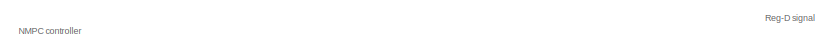
[diagram: root canvas - part 1/2, top center region]
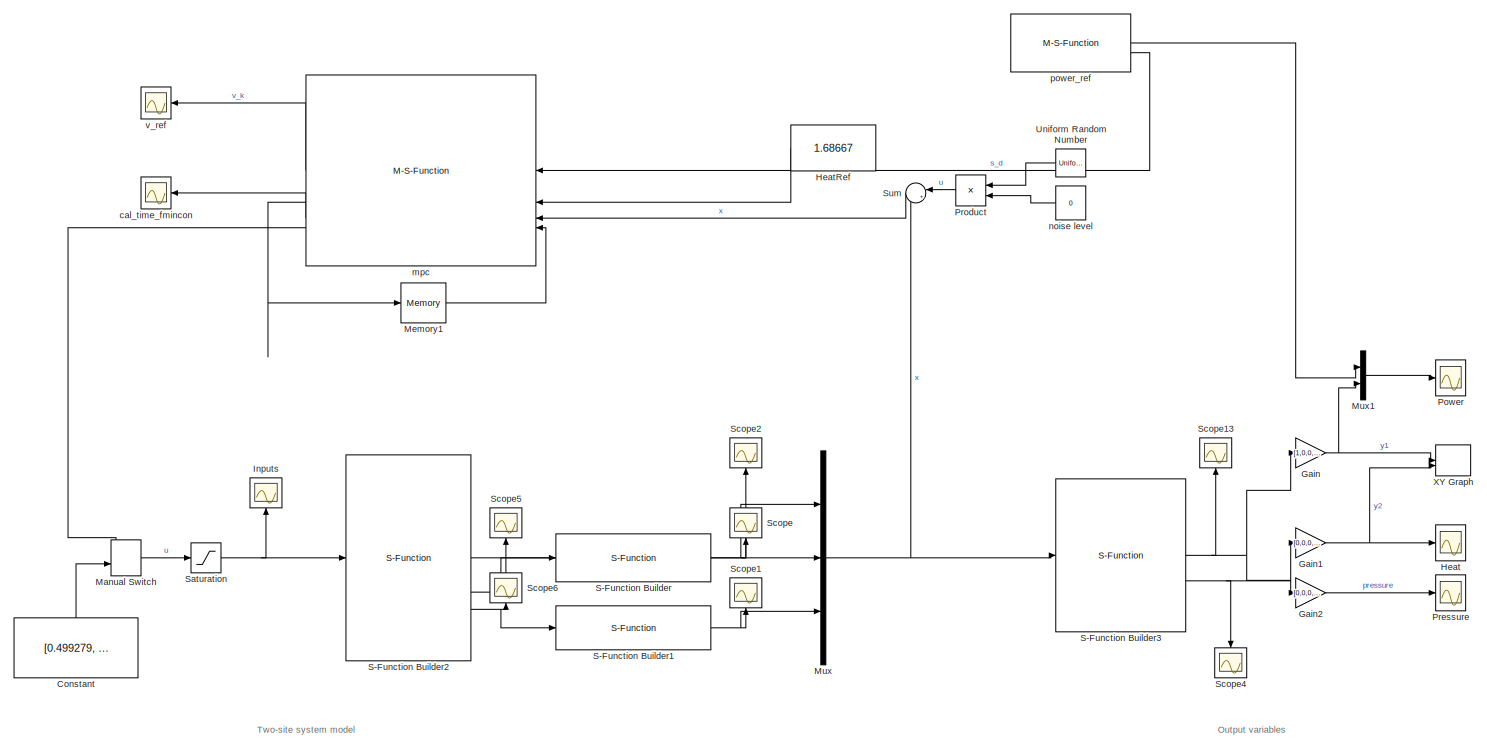
[diagram: root canvas - part 2/2, most of the canvas]
MODEL slx_e04e0ac79650
KIND model
CONFIG AbsTol = auto
CONFIG EnableMultiTasking = off
CONFIG FixedStep = auto
CONFIG MaxStep = auto
CONFIG MinStep = auto
CONFIG RelTol = 1e-6
CONFIG SampleTimeConstraint = Unconstrained
CONFIG SolverName = ode45
CONFIG StartTime = -180
CONFIG StopTime = 60*40
BLOCK [Constant] Constant
  NameLocation = right
  Value = [0.499279, 0.41847]
BLOCK [Gain] Gain
  Gain = [1,0,0,0,0,0,0,0,0]
  Multiplication = Matrix(K*u) (u vector)
BLOCK [Gain] Gain1
  Gain = [0,0,0,0,0,1,0,0,0]
  Multiplication = Matrix(K*u) (u vector)
BLOCK [Gain] Gain2
  Gain = [0,0,0,0.5]
  Multiplication = Matrix(K*u) (u vector)
BLOCK [Scope] Heat
  Floating = off
  NumInputPorts = 1
  ScopeSpecificationString = Simulink.scopes.TimeScopeBlockCfg('CurrentConfiguration', extmgr.ConfigurationSet(extmgr.Configuration('Core','General UI',true),extmgr.Configuration('Core','Source UI',true),extmgr.Configuration('Sources','WiredSimulink',true,'DataLoggingVariableName','heatflow','DataLogging',true,'DataLoggingSaveFormat','Array'),extmgr.Configuration('Visuals','Time Domain',true,'SerializedDisplays',{struct('MinY...<+1537ch>
BLOCK [Constant] HeatRef
  NameLocation = top
  Value = 1.68667
BLOCK [Scope] Inputs
  Floating = off
  NameLocation = right
  NumInputPorts = 1
  ScopeSpecificationString = Simulink.scopes.TimeScopeBlockCfg('CurrentConfiguration', extmgr.ConfigurationSet(extmgr.Configuration('Core','General UI',true),extmgr.Configuration('Core','Source UI',true),extmgr.Configuration('Sources','WiredSimulink',true,'DataLoggingVariableName','inputs','DataLogging',true,'DataLoggingSaveFormat','StructureWithTime'),extmgr.Configuration('Visuals','Time Domain',true,'SerializedDisplays',{st...<+1546ch>
BLOCK [ManualSwitch] Manual Switch
BLOCK [Memory] Memory1
  InheritSampleTime = on
  InitialCondition = [1,1.69,1,1.69,1,1.69,1,1.69]
BLOCK [Mux] Mux
  DisplayOption = bar
  Inputs = 3
BLOCK [Mux] Mux1
  DisplayOption = bar
  Inputs = 2
BLOCK [Scope] Power
  Floating = off
  NumInputPorts = 1
  ScopeSpecificationString = Simulink.scopes.TimeScopeBlockCfg('CurrentConfiguration', extmgr.ConfigurationSet(extmgr.Configuration('Core','General UI',true),extmgr.Configuration('Core','Source UI',true),extmgr.Configuration('Sources','WiredSimulink',true,'DataLoggingVariableName','power','DataLogging',true,'DataLoggingSaveFormat','Array'),extmgr.Configuration('Visuals','Time Domain',true,'SerializedDisplays',{struct('MinYLim...<+1575ch>
BLOCK [Scope] Pressure
  Floating = off
  NumInputPorts = 1
  ScopeSpecificationString = Simulink.scopes.TimeScopeBlockCfg('CurrentConfiguration', extmgr.ConfigurationSet(extmgr.Configuration('Core','General UI',true),extmgr.Configuration('Core','Source UI',true),extmgr.Configuration('Sources','WiredSimulink',true,'DataLoggingVariableName','pressure','DataLogging',true,'DataLoggingSaveFormat','Array'),extmgr.Configuration('Visuals','Time Domain',true,'SerializedDisplays',{struct('MinY...<+1496ch>
BLOCK [Product] Product
  NameLocation = top
BLOCK [S-Function] S-Function Builder
  CopyFcn = set_param(gcbh,'LinkStatus','none')
  EnableBusSupport = off
  FunctionName = electric_subsystem
  InitFcn = try, set_param(gcb,'FunctionName','electric_subsystem'), end
  OpenFcn = sfunctionwizard(gcbh)
  PreSaveFcn = try, set_param(gcb,'FunctionName','electric_subsystem'), end
  SFcnIsStateOwnerBlock = off
  SFunctionDeploymentMode = off
  SFunctionModules = electric_subsystem_wrapper cforms
BLOCK [S-Function] S-Function Builder1
  CopyFcn = set_param(gcbh,'LinkStatus','none')
  EnableBusSupport = off
  FunctionName = heat_subsystem
  InitFcn = try, set_param(gcb,'FunctionName','heat_subsystem'), end
  OpenFcn = sfunctionwizard(gcbh)
  PreSaveFcn = try, set_param(gcb,'FunctionName','heat_subsystem'), end
  SFcnIsStateOwnerBlock = off
  SFunctionDeploymentMode = off
  SFunctionModules = heat_subsystem_wrapper cforms
BLOCK [S-Function] S-Function Builder2
  CopyFcn = set_param(gcbh,'LinkStatus','none')
  EnableBusSupport = off
  FunctionName = gasturbine
  InitFcn = try, set_param(gcb,'FunctionName','gasturbine'), end
  OpenFcn = sfunctionwizard(gcbh)
  PreSaveFcn = try, set_param(gcb,'FunctionName','gasturbine'), end
  SFcnIsStateOwnerBlock = off
  SFunctionDeploymentMode = off
  SFunctionModules = gasturbine_wrapper cforms
BLOCK [S-Function] S-Function Builder3
  CopyFcn = set_param(gcbh,'LinkStatus','none')
  EnableBusSupport = off
  FunctionName = state_transformation
  InitFcn = try, set_param(gcb,'FunctionName','state_transformation'), end
  OpenFcn = sfunctionwizard(gcbh)
  PreSaveFcn = try, set_param(gcb,'FunctionName','state_transformation'), end
  SFcnIsStateOwnerBlock = off
  SFunctionDeploymentMode = off
  SFunctionModules = state_transformation_wrapper cforms
BLOCK [Saturate] Saturation
  LowerLimit = [0, 0]
  UpperLimit = [1.0, 1.0]
BLOCK [Scope] Scope
  Floating = off
  NameLocation = right
  NumInputPorts = 1
  ScopeSpecificationString = Simulink.scopes.TimeScopeBlockCfg('CurrentConfiguration', extmgr.ConfigurationSet(extmgr.Configuration('Core','General UI',true),extmgr.Configuration('Core','Source UI',true),extmgr.Configuration('Sources','WiredSimulink',true),extmgr.Configuration('Visuals','Time Domain',true,'SerializedDisplays',{struct('MinYLimReal','-0.14361','MaxYLimReal','0.99195','YLabelReal','','MinYLimMag','0.00000','MaxY...<+1429ch>
BLOCK [Scope] Scope1
  Floating = off
  NameLocation = right
  NumInputPorts = 1
  ScopeSpecificationString = Simulink.scopes.TimeScopeBlockCfg('CurrentConfiguration', extmgr.ConfigurationSet(extmgr.Configuration('Core','General UI',true),extmgr.Configuration('Core','Source UI',true),extmgr.Configuration('Sources','WiredSimulink',true,'DataLoggingVariableName','ScopeData1'),extmgr.Configuration('Visuals','Time Domain',true,'SerializedDisplays',{struct('MinYLimReal','-15.65337','MaxYLimReal','15.55475','YL...<+1480ch>
BLOCK [Scope] Scope13
  Floating = off
  NameLocation = right
  NumInputPorts = 1
  ScopeSpecificationString = Simulink.scopes.TimeScopeBlockCfg('CurrentConfiguration', extmgr.ConfigurationSet(extmgr.Configuration('Core','General UI',true),extmgr.Configuration('Core','Source UI',true),extmgr.Configuration('Sources','WiredSimulink',true,'DataLoggingVariableName','ScopeData1'),extmgr.Configuration('Visuals','Time Domain',true,'SerializedDisplays',{struct('MinYLimReal','-1.88155','MaxYLimReal','2.09543','YLab...<+1872ch>
BLOCK [Scope] Scope2
  Floating = off
  NameLocation = right
  NumInputPorts = 1
  ScopeSpecificationString = Simulink.scopes.TimeScopeBlockCfg('CurrentConfiguration', extmgr.ConfigurationSet(extmgr.Configuration('Core','General UI',true),extmgr.Configuration('Core','Source UI',true),extmgr.Configuration('Sources','WiredSimulink',true,'DataLoggingVariableName','ScopeData2'),extmgr.Configuration('Visuals','Time Domain',true,'SerializedDisplays',{struct('MinYLimReal','0.32701','MaxYLimReal','0.80856','YLabe...<+1588ch>
BLOCK [Scope] Scope4
  Floating = off
  NameLocation = left
  NumInputPorts = 1
  ScopeSpecificationString = Simulink.scopes.TimeScopeBlockCfg('CurrentConfiguration', extmgr.ConfigurationSet(extmgr.Configuration('Core','General UI',true),extmgr.Configuration('Core','Source UI',true),extmgr.Configuration('Sources','WiredSimulink',true,'DataLoggingVariableName','ScopeData4'),extmgr.Configuration('Visuals','Time Domain',true,'SerializedDisplays',{struct('MinYLimReal','-0.2393','MaxYLimReal','0.78898','YLabe...<+1543ch>
BLOCK [Scope] Scope5
  Floating = off
  NameLocation = right
  NumInputPorts = 1
  ScopeSpecificationString = Simulink.scopes.TimeScopeBlockCfg('CurrentConfiguration', extmgr.ConfigurationSet(extmgr.Configuration('Core','General UI',true),extmgr.Configuration('Core','Source UI',true),extmgr.Configuration('Sources','WiredSimulink',true,'DataLoggingVariableName','ScopeData5'),extmgr.Configuration('Visuals','Time Domain',true,'SerializedDisplays',{struct('MinYLimReal','0.18885','MaxYLimReal','0.81115','YLabe...<+1406ch>
BLOCK [Scope] Scope6
  Floating = off
  NameLocation = right
  NumInputPorts = 1
  ScopeSpecificationString = Simulink.scopes.TimeScopeBlockCfg('CurrentConfiguration', extmgr.ConfigurationSet(extmgr.Configuration('Core','General UI',true),extmgr.Configuration('Core','Source UI',true),extmgr.Configuration('Sources','WiredSimulink',true,'DataLoggingVariableName','ScopeData6'),extmgr.Configuration('Visuals','Time Domain',true,'SerializedDisplays',{struct('MinYLimReal','0.08706','MaxYLimReal','4.12684','YLabe...<+1406ch>
BLOCK [Sum] Sum
  Inputs = |++
  NameLocation = top
BLOCK [UniformRandomNumber] Uniform Random Number
  NameLocation = top
  SampleTime = 2
BLOCK [Record] XY Graph
  CompatibilityTag = XY
  FileSettingsInternal = {"entries":[{"content":{"excelSettings":{"content":{},"type":"Streamout.ExcelSettings"}},"type":"Streamout.FileSettingStorage","uuid":""}],"packageUris":["http:\/\/schema.mathworks.com\/mf0\/streamout_blocks\/R2020a"],"version":"1.0"}
  Layout = [1 1]
  SignalsInternal = {"entries":[{"content":{"signals":[{"content":{"blockPath":[],"dimensions":[1],"domain":"","lineColor":"#a2142f","plots":[1],"port":1,"signalID":17,"signalName":"y1"},"type":"RecordBlkView.Signal","uuid":""},{"content":{"blockPath":[],"dimensions":[1],"domain":"","lineColor":"#139fff","port":2,"signalID":20,"signalName":"y2"},"type":"RecordBlkView.Signal","uuid":""}]},"type":"RecordBlkView.InputSi...<+114ch>
  VisualizationBindings = {"xyplotplugin":{"info":[{"series":[],"subplotID":1}]}}
BLOCK [Scope] cal_time_fmincon
  Floating = off
  NameLocation = top
  NumInputPorts = 1
  ScopeSpecificationString = Simulink.scopes.TimeScopeBlockCfg('CurrentConfiguration', extmgr.ConfigurationSet(extmgr.Configuration('Core','General UI',true),extmgr.Configuration('Core','Source UI',true),extmgr.Configuration('Sources','WiredSimulink',true,'DataLoggingVariableName','cal_time','DataLogging',true,'DataLoggingSaveFormat','StructureWithTime'),extmgr.Configuration('Visuals','Time Domain',true,'SerializedDisplays',{...<+1575ch>
BLOCK [M-S-Function] mpc
  FunctionName = msfcn_mpc_rev2
  NameLocation = top
  Parameters = Tstep, Nhorizon, Qz, Rv, Plim, u1max, u2max
BLOCK [Constant] noise level
  Value = 0
BLOCK [M-S-Function] power_ref
  FunctionName = msfun_regd
  NameLocation = top
  Parameters = Pnominal, ASamplitude
BLOCK [Scope] v_ref
  Floating = off
  NameLocation = top
  NumInputPorts = 1
  ScopeSpecificationString = Simulink.scopes.TimeScopeBlockCfg('CurrentConfiguration', extmgr.ConfigurationSet(extmgr.Configuration('Core','General UI',true),extmgr.Configuration('Core','Source UI',true),extmgr.Configuration('Sources','WiredSimulink',true,'DataLoggingVariableName','ScopeData1'),extmgr.Configuration('Visuals','Time Domain',true,'SerializedDisplays',{struct('MinYLimReal','0.35569','MaxYLimReal','2.82546','YLabe...<+1493ch>
ANNOTATION (root): NMPC controller
ANNOTATION (root): Output variables
ANNOTATION (root): Reg-D signal
ANNOTATION (root): Two-site system model
LINE Constant:1 -> Manual Switch:2
NET Gain1:1 -> Heat:1, XY Graph:2
LINE Gain2:1 -> Pressure:1
NET Gain:1 -> Mux1:2, XY Graph:1
LINE HeatRef:1 -> mpc:2
LINE Manual Switch:1 -> Saturation:1
LINE Memory1:1 -> mpc:4
LINE Mux1:1 -> Power:1
NET Mux:1 -> S-Function Builder3:1, Sum:2
LINE Product:1 -> Sum:1
NET S-Function Builder1:1 -> Mux:3, Scope1:1
NET S-Function Builder2:1 -> Mux:1, Scope2:1
NET S-Function Builder2:2 -> S-Function Builder:1, Scope5:1
NET S-Function Builder2:3 -> S-Function Builder1:1, Scope6:1
NET S-Function Builder3:1 -> Gain1:1, Gain:1, Scope13:1
NET S-Function Builder3:2 -> Gain2:1, Scope4:1
NET S-Function Builder:1 -> Mux:2, Scope:1
NET Saturation:1 -> Inputs:1, S-Function Builder2:1
LINE Sum:1 -> mpc:3
LINE Uniform Random Number:1 -> Product:1
LINE mpc:1 -> v_ref:1
LINE mpc:2 -> Memory1:1
LINE mpc:3 -> cal_time_fmincon:1
LINE mpc:4 -> Manual Switch:1
LINE noise level:1 -> Product:2
LINE power_ref:1 -> Mux1:1
LINE power_ref:2 -> mpc:1
note: NET lines group one-source signal fan-out (src -> all destinations, sorted); 1:1 wires keep LINE
